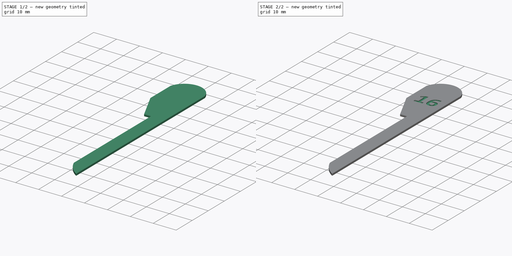
[diagram: build sequence overview — one tinted view per stage of 2, left to right]
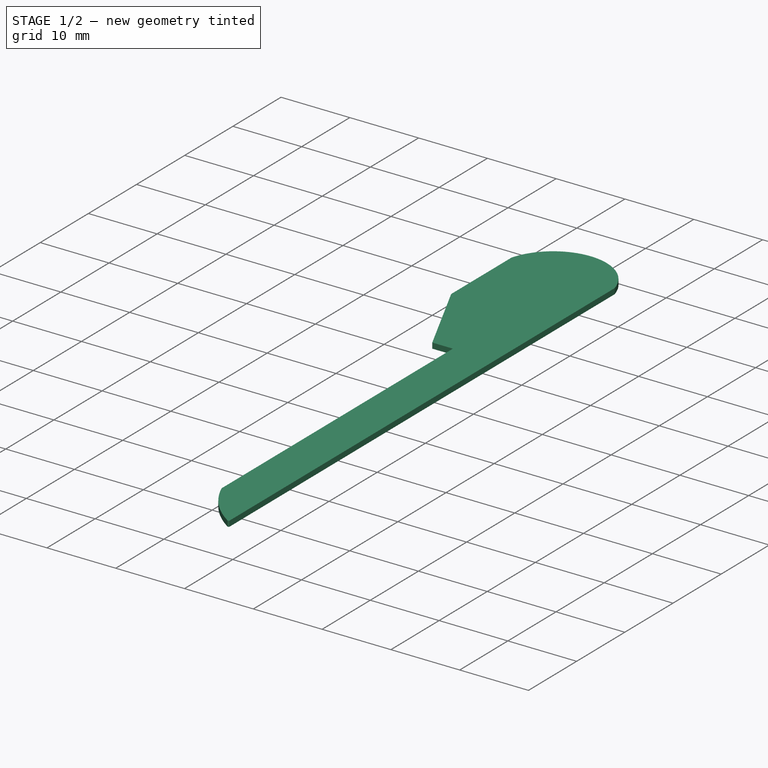
[diagram: stage 1 of 2 — iso view after this stage's code; geometry added in this stage tinted green]
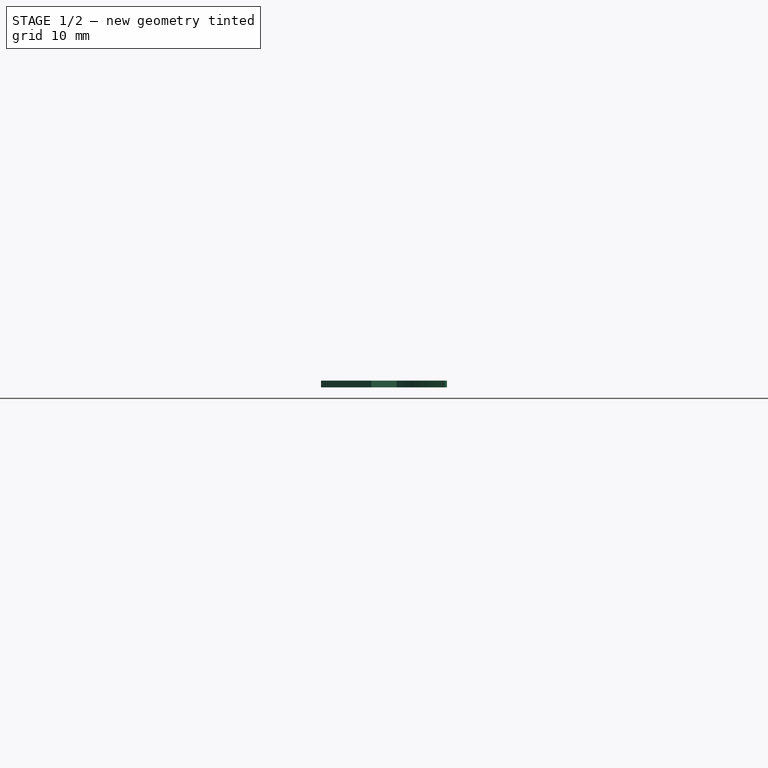
[diagram: stage 1 of 2 — front view after this stage's code; geometry added in this stage tinted green]
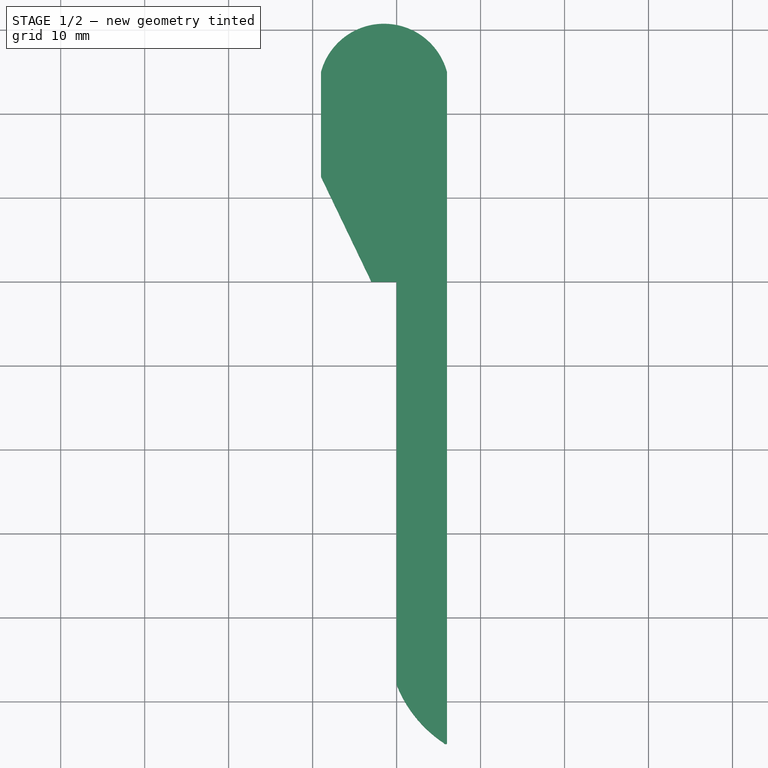
[diagram: stage 1 of 2 — top view after this stage's code; geometry added in this stage tinted green]
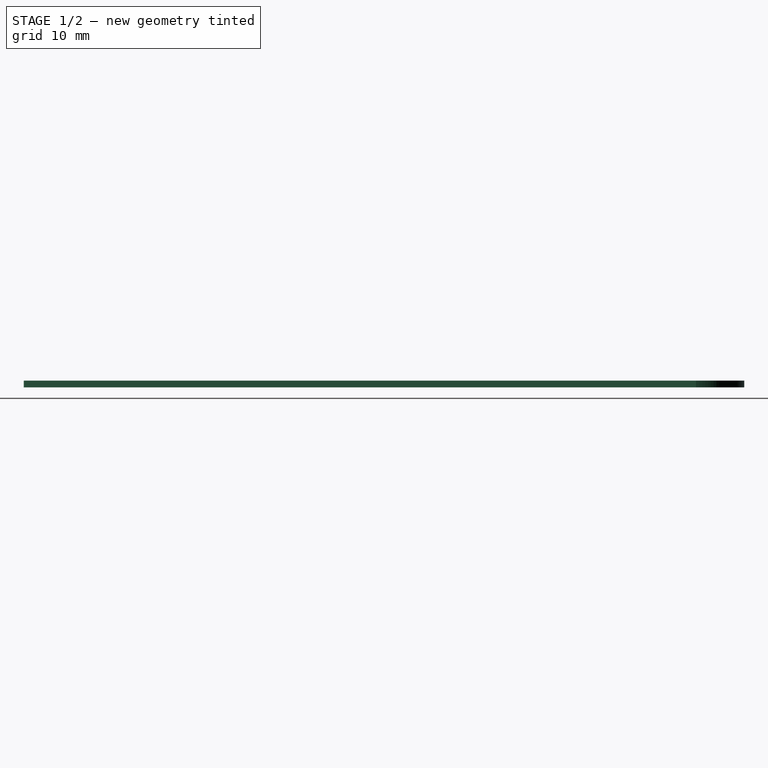
[diagram: stage 1 of 2 — right view after this stage's code; geometry added in this stage tinted green]
FCSTD DOCUMENT  (FreeCAD 0.21R33771 (Git))
Label: SpringLifter16
License: All rights reserved
LicenseURL: http://en.wikipedia.org/wiki/All_rights_reserved
objects: Sketcher::SketchObject×1, Part::Part2DObjectPython×1, PartDesign::Pad×1, PartDesign::Pocket×1, PartDesign::Body×1
note: 7 computed .brp shape members not serialized (recipe doc carries the construction recipe); baked Part::Feature solids carry a one-line shape summary decoded from their .brp

FEATURE [Sketcher::SketchObject] Sketch  label="SpringLifter16Sketch"
  FullyConstrained = false
  MapMode = 5
  Support = -> [XY_Plane]
  sketch-geometry (9):
    g0: LineSegment StartX=0 StartY=0 StartZ=0 EndX=1.8e-15 EndY=-48 EndZ=0
    g1: LineSegment StartX=0 StartY=0 StartZ=0 EndX=-3 EndY=0 EndZ=0
    g2: LineSegment StartX=-3 StartY=0 StartZ=0 EndX=-9 EndY=12.5 EndZ=0
    g3: LineSegment StartX=-9 StartY=12.5 StartZ=0 EndX=-9 EndY=25 EndZ=0
    g4: LineSegment StartX=6 StartY=-55 StartZ=0 EndX=6 EndY=25 EndZ=0
    g5: LineSegment StartX=-9 StartY=25 StartZ=0 EndX=6 EndY=25 EndZ=0
    g6: ArcOfCircle CenterX=-1.5 CenterY=22.9695 CenterZ=0 NormalX=0 NormalY=0 NormalZ=1 AngleXU=0 Radius=7.77 StartAngle=0.264394 EndAngle=2.8772
    g7: ArcOfCircle CenterX=5.83645 CenterY=-54.8109 CenterZ=0 NormalX=0 NormalY=0 NormalZ=1 AngleXU=0 Radius=0.25 StartAngle=3.66566 EndAngle=5.42553
    g8: ArcOfCircle CenterX=13.8714 CenterY=-42.5054 CenterZ=0 NormalX=0 NormalY=0 NormalZ=1 AngleXU=0 Radius=14.92 StartAngle=3.51874 EndAngle=4.12638
  constraints (27):
    c: Coincident(g0,g-1)
    c: PointOnObject(g0,g-2)
    c: DistanceY(g0,g0) = 48
    c: Coincident(g1,g0)
    c: PointOnObject(g1,g-1)
    c: DistanceX(g1,g1) = 3
    c: Coincident(g2,g1)
    c: Coincident(g3,g2)
    c: Vertical(g3)
    c: Vertical(g4)
    c: Coincident(g5,g3)
    c: Coincident(g5,g4)
    c: Horizontal(g5)
    c: Coincident(g6,g3)
    c: Coincident(g6,g4)
    c: DistanceX(g0,g4) = 6
    c: DistanceY(g3,g3) = 12.5
    c: DistanceY(g1,g2) = 12.5
    c: DistanceY(g4,g4) = 80
    c: DistanceX(g5,g5) = 15
    c: Radius(g6) = 7.77
    c: Coincident(g7,g4)
    c: Coincident(g8,g7)
    c: Coincident(g8,g0)
    c: Radius(g7) = 0.25
    c: Radius(g8) = 14.92
    c: DistanceX(g7,g4) = 0.38
FEATURE [Part::Part2DObjectPython] ShapeString  label="Text16ShapeString"  # Draft 2D object (typed FeaturePython)
  FontFile = <path>
  MakeFace = true
  Placement = pos=(-6.25,12,0.8) rot=(0,0,1;0rad)
  Size = 7
  String = 16
  Tracking = 0
FEATURE [PartDesign::Pad] Pad  label="SpringLifter16Pad"
  Direction = (0,0,1)
  Length = 0.8
  Length2 = 10
  Profile = -> Sketch
  ReferenceAxis = -> Sketch [N_Axis]
  Type = 0
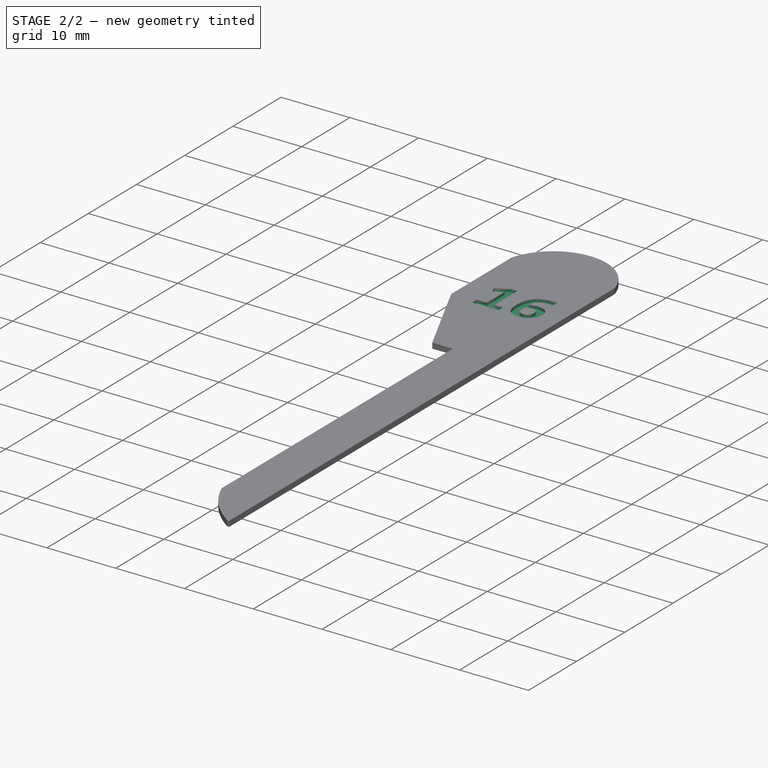
[diagram: stage 2 of 2 — iso view after this stage's code; geometry added in this stage tinted green]
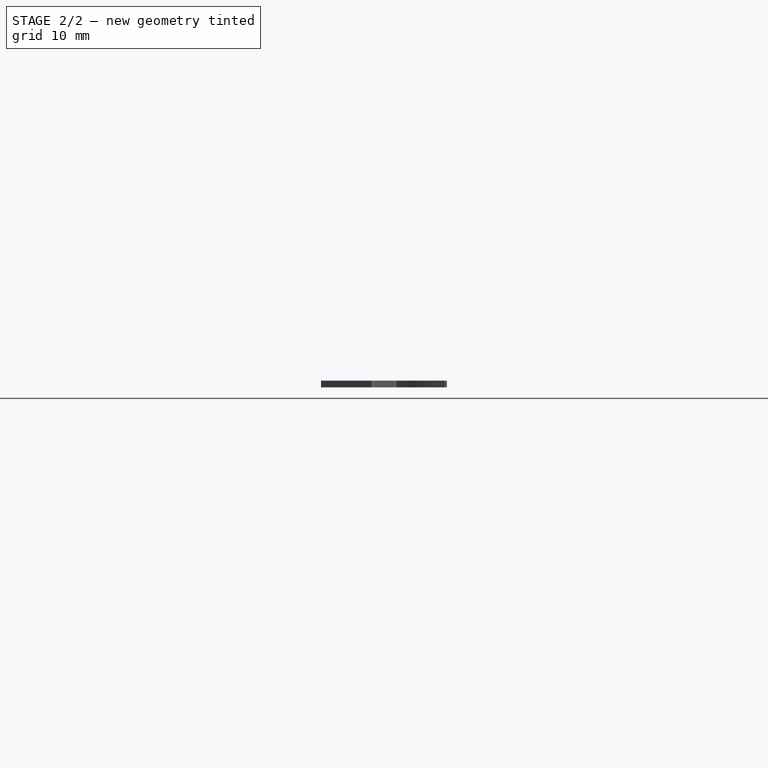
[diagram: stage 2 of 2 — front view after this stage's code; geometry added in this stage tinted green]
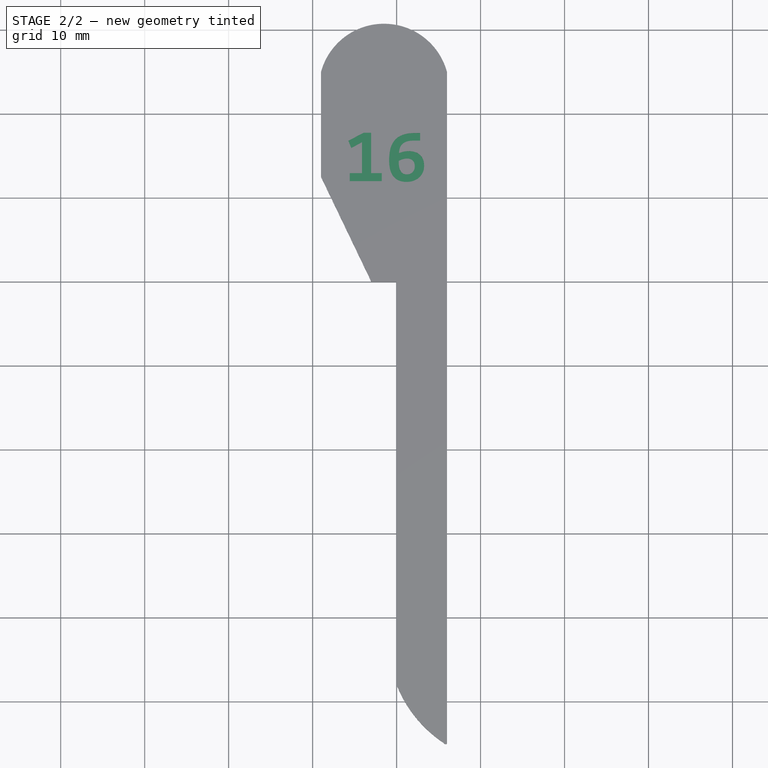
[diagram: stage 2 of 2 — top view after this stage's code; geometry added in this stage tinted green]
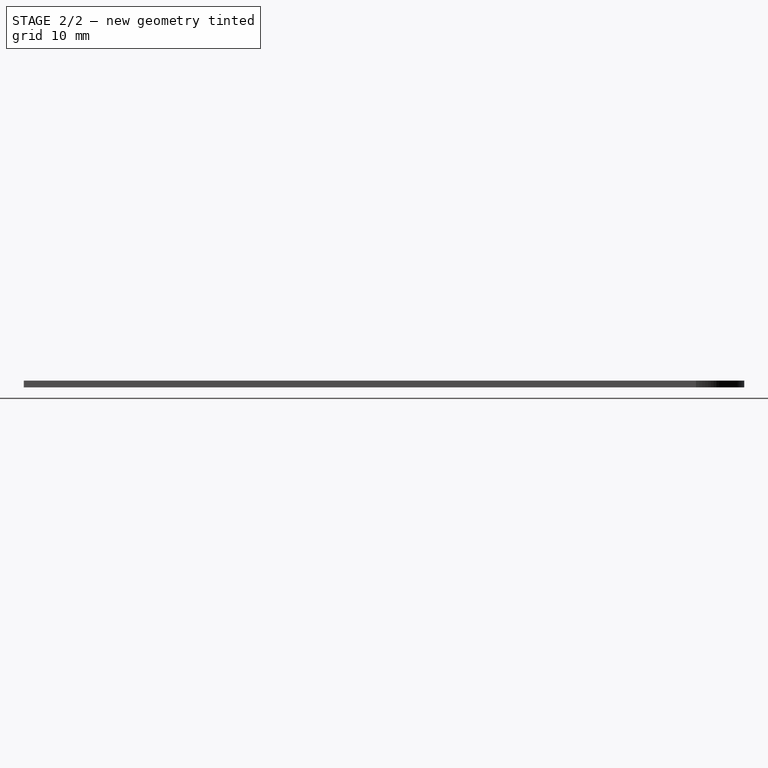
[diagram: stage 2 of 2 — right view after this stage's code; geometry added in this stage tinted green]
FEATURE [PartDesign::Pocket] Pocket  label="Text16Pocket"
  BaseFeature = -> Pad
  Direction = (0,0,-1)
  Length = 0.4
  Length2 = 5
  Profile = -> ShapeString
  ReferenceAxis = -> ShapeString [N_Axis]
  Type = 0
FEATURE [PartDesign::Body] Body
  Group = -> [Sketch,ShapeString,Pad,Pocket]
  Origin = -> Origin
  Tip = -> Pocket
note: 1 file-system path scrubbed to <path> (originals preserved in the JSON sidecar)
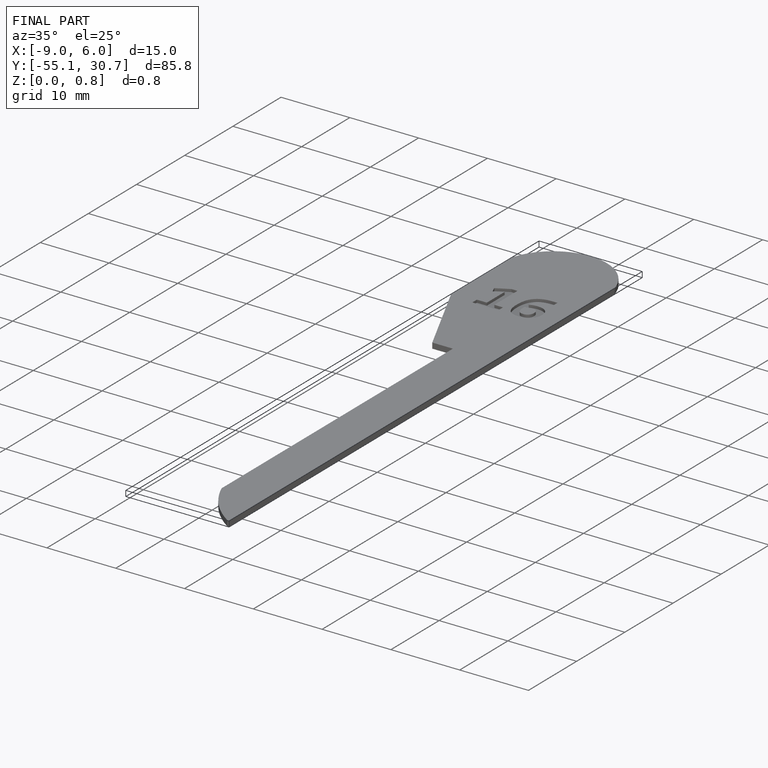
[diagram: finished part — iso view with bounding-box wireframe]
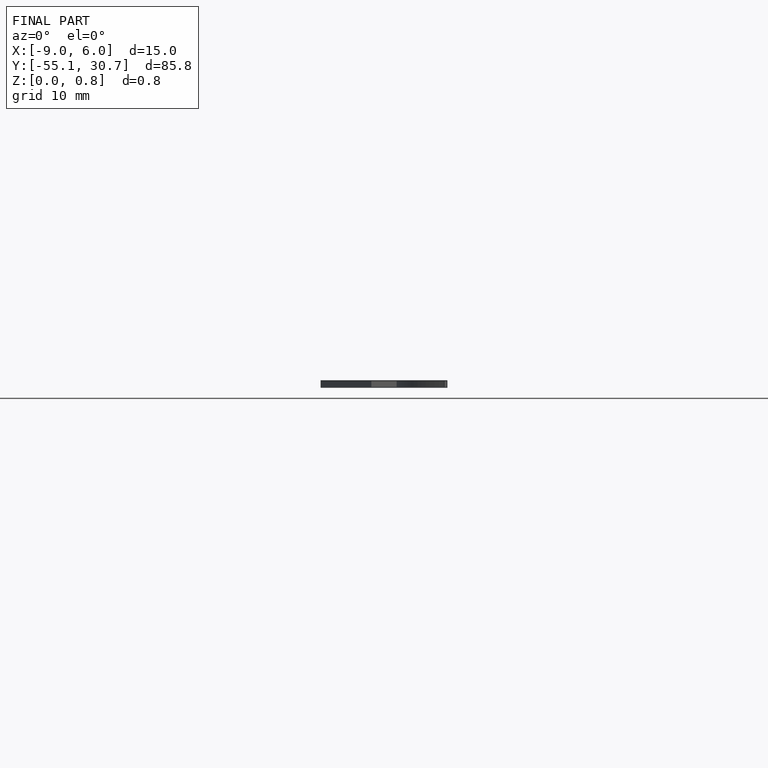
[diagram: finished part — front view with bounding-box wireframe]
